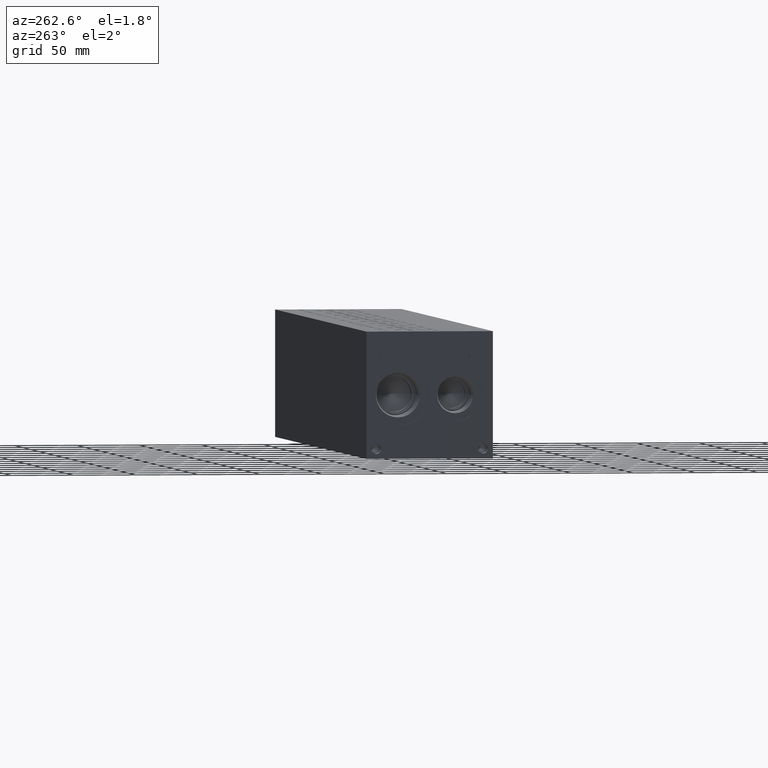
[diagram: clean part render]
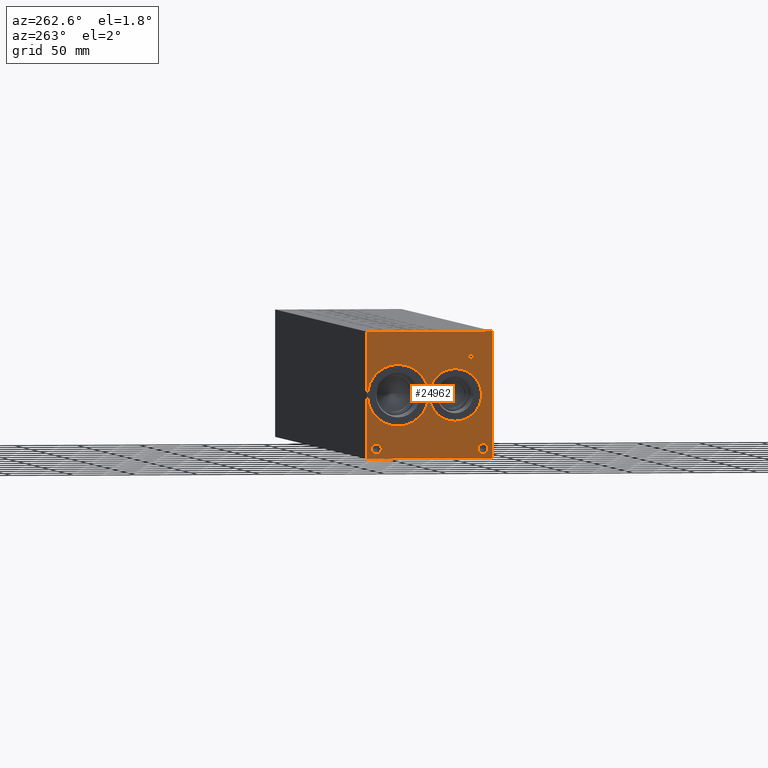
[diagram: same view with one face highlighted and labeled with its STEP entity id]
A machine part, auxiliary view. The second image highlights one B-rep face of the part: STEP entity #24962.
In plain terms, the highlighted planar face has unit normal (-1, 0, 0).
Its self-contained STEP definition (entity closure, byte-faithful):
#502=CIRCLE('',#26354,24.5618);
#503=CIRCLE('',#26355,24.5618);
#504=CIRCLE('',#26356,21.0185);
#505=CIRCLE('',#26357,21.0185);
#506=CIRCLE('',#26358,3.9624);
#507=CIRCLE('',#26359,3.9624);
#508=CIRCLE('',#26360,3.9624);
#509=CIRCLE('',#26361,3.9624);
#1520=FACE_BOUND('',#3888,.T.);
#1521=FACE_BOUND('',#3889,.T.);
#1522=FACE_BOUND('',#3890,.T.);
#1523=FACE_BOUND('',#3891,.T.);
#1524=FACE_BOUND('',#3892,.T.);
#1525=FACE_BOUND('',#3893,.T.);
#1838=PLANE('',#26353);
#2494=FACE_OUTER_BOUND('',#3887,.T.);
#3887=EDGE_LOOP('',(#16776,#16777,#16778,#16779));
#3888=EDGE_LOOP('',(#16780,#16781));
#3889=EDGE_LOOP('',(#16782,#16783));
#3890=EDGE_LOOP('',(#16784,#16785));
#3891=EDGE_LOOP('',(#16786,#16787));
#3892=EDGE_LOOP('',(#16788,#16789,#16790,#16791,#16792,#16793,#16794,#16795));
#3893=EDGE_LOOP('',(#16796,#16797,#16798,#16799,#16800,#16801,#16802,#16803,
#16804));
#5594=LINE('',#35268,#7716);
#5597=LINE('',#35274,#7719);
#5600=LINE('',#35280,#7722);
#5603=LINE('',#35286,#7725);
#5606=LINE('',#35292,#7728);
#5610=LINE('',#35335,#7732);
#5611=LINE('',#35337,#7733);
#5612=LINE('',#35339,#7734);
#5613=LINE('',#35340,#7735);
#5614=LINE('',#35359,#7736);
#5615=LINE('',#35361,#7737);
#5616=LINE('',#35363,#7738);
#5617=LINE('',#35365,#7739);
#5618=LINE('',#35367,#7740);
#5619=LINE('',#35369,#7741);
#5620=LINE('',#35371,#7742);
#5621=LINE('',#35372,#7743);
#7716=VECTOR('',#28595,10.);
#7719=VECTOR('',#28600,10.);
#7722=VECTOR('',#28605,10.);
#7725=VECTOR('',#28610,10.);
#7728=VECTOR('',#28615,10.);
#7732=VECTOR('',#28623,10.);
#7733=VECTOR('',#28624,10.);
#7734=VECTOR('',#28625,10.);
#7735=VECTOR('',#28626,10.);
#7736=VECTOR('',#28643,10.);
#7737=VECTOR('',#28644,10.);
#7738=VECTOR('',#28645,10.);
#7739=VECTOR('',#28646,10.);
#7740=VECTOR('',#28647,10.);
#7741=VECTOR('',#28648,10.);
#7742=VECTOR('',#28649,10.);
#7743=VECTOR('',#28650,10.);
#9786=B_SPLINE_CURVE_WITH_KNOTS('',2,(#35235,#35236,#35237,#35238),
 .UNSPECIFIED.,.F.,.F.,(3,1,3),(0.,1.,2.),.UNSPECIFIED.);
#9788=B_SPLINE_CURVE_WITH_KNOTS('',2,(#35256,#35257,#35258,#35259),
 .UNSPECIFIED.,.F.,.F.,(3,1,3),(0.,1.,2.),.UNSPECIFIED.);
#9790=B_SPLINE_CURVE_WITH_KNOTS('',2,(#35305,#35306,#35307,#35308),
 .UNSPECIFIED.,.F.,.F.,(3,1,3),(0.,1.,2.),.UNSPECIFIED.);
#9792=B_SPLINE_CURVE_WITH_KNOTS('',2,(#35323,#35324,#35325,#35326),
 .UNSPECIFIED.,.F.,.F.,(3,1,3),(0.,1.,2.),.UNSPECIFIED.);
#10366=VERTEX_POINT('',#35233);
#10367=VERTEX_POINT('',#35234);
#10370=VERTEX_POINT('',#35255);
#10372=VERTEX_POINT('',#35267);
#10374=VERTEX_POINT('',#35273);
#10376=VERTEX_POINT('',#35279);
#10378=VERTEX_POINT('',#35285);
#10380=VERTEX_POINT('',#35291);
#10382=VERTEX_POINT('',#35304);
#10384=VERTEX_POINT('',#35333);
#10385=VERTEX_POINT('',#35334);
#10386=VERTEX_POINT('',#35336);
#10387=VERTEX_POINT('',#35338);
#10388=VERTEX_POINT('',#35341);
#10389=VERTEX_POINT('',#35342);
#10390=VERTEX_POINT('',#35345);
#10391=VERTEX_POINT('',#35346);
#10392=VERTEX_POINT('',#35349);
#10393=VERTEX_POINT('',#35350);
#10394=VERTEX_POINT('',#35353);
#10395=VERTEX_POINT('',#35354);
#10396=VERTEX_POINT('',#35357);
#10397=VERTEX_POINT('',#35358);
#10398=VERTEX_POINT('',#35360);
#10399=VERTEX_POINT('',#35362);
#10400=VERTEX_POINT('',#35364);
#10401=VERTEX_POINT('',#35366);
#10402=VERTEX_POINT('',#35368);
#10403=VERTEX_POINT('',#35370);
#12982=EDGE_CURVE('',#10366,#10367,#9786,.T.);
#12986=EDGE_CURVE('',#10370,#10366,#9788,.T.);
#12989=EDGE_CURVE('',#10372,#10370,#5594,.T.);
#12992=EDGE_CURVE('',#10374,#10372,#5597,.T.);
#12995=EDGE_CURVE('',#10376,#10374,#5600,.T.);
#12998=EDGE_CURVE('',#10378,#10376,#5603,.T.);
#13001=EDGE_CURVE('',#10380,#10378,#5606,.T.);
#13004=EDGE_CURVE('',#10382,#10380,#9790,.T.);
#13007=EDGE_CURVE('',#10367,#10382,#9792,.T.);
#13009=EDGE_CURVE('',#10384,#10385,#5610,.T.);
#13010=EDGE_CURVE('',#10385,#10386,#5611,.T.);
#13011=EDGE_CURVE('',#10387,#10386,#5612,.T.);
#13012=EDGE_CURVE('',#10384,#10387,#5613,.T.);
#13013=EDGE_CURVE('',#10388,#10389,#502,.T.);
#13014=EDGE_CURVE('',#10389,#10388,#503,.T.);
#13015=EDGE_CURVE('',#10390,#10391,#504,.T.);
#13016=EDGE_CURVE('',#10391,#10390,#505,.T.);
#13017=EDGE_CURVE('',#10392,#10393,#506,.T.);
#13018=EDGE_CURVE('',#10393,#10392,#507,.T.);
#13019=EDGE_CURVE('',#10394,#10395,#508,.T.);
#13020=EDGE_CURVE('',#10395,#10394,#509,.T.);
#13021=EDGE_CURVE('',#10396,#10397,#5614,.T.);
#13022=EDGE_CURVE('',#10397,#10398,#5615,.T.);
#13023=EDGE_CURVE('',#10398,#10399,#5616,.T.);
#13024=EDGE_CURVE('',#10399,#10400,#5617,.T.);
#13025=EDGE_CURVE('',#10400,#10401,#5618,.T.);
#13026=EDGE_CURVE('',#10401,#10402,#5619,.T.);
#13027=EDGE_CURVE('',#10402,#10403,#5620,.T.);
#13028=EDGE_CURVE('',#10403,#10396,#5621,.T.);
#16776=ORIENTED_EDGE('',*,*,#13009,.T.);
#16777=ORIENTED_EDGE('',*,*,#13010,.T.);
#16778=ORIENTED_EDGE('',*,*,#13011,.F.);
#16779=ORIENTED_EDGE('',*,*,#13012,.F.);
#16780=ORIENTED_EDGE('',*,*,#13013,.T.);
#16781=ORIENTED_EDGE('',*,*,#13014,.T.);
#16782=ORIENTED_EDGE('',*,*,#13015,.T.);
#16783=ORIENTED_EDGE('',*,*,#13016,.T.);
#16784=ORIENTED_EDGE('',*,*,#13017,.T.);
#16785=ORIENTED_EDGE('',*,*,#13018,.T.);
#16786=ORIENTED_EDGE('',*,*,#13019,.T.);
#16787=ORIENTED_EDGE('',*,*,#13020,.T.);
#16788=ORIENTED_EDGE('',*,*,#13021,.T.);
#16789=ORIENTED_EDGE('',*,*,#13022,.T.);
#16790=ORIENTED_EDGE('',*,*,#13023,.T.);
#16791=ORIENTED_EDGE('',*,*,#13024,.T.);
#16792=ORIENTED_EDGE('',*,*,#13025,.T.);
#16793=ORIENTED_EDGE('',*,*,#13026,.T.);
#16794=ORIENTED_EDGE('',*,*,#13027,.T.);
#16795=ORIENTED_EDGE('',*,*,#13028,.T.);
#16796=ORIENTED_EDGE('',*,*,#12982,.T.);
#16797=ORIENTED_EDGE('',*,*,#13007,.T.);
#16798=ORIENTED_EDGE('',*,*,#13004,.T.);
#16799=ORIENTED_EDGE('',*,*,#13001,.T.);
#16800=ORIENTED_EDGE('',*,*,#12998,.T.);
#16801=ORIENTED_EDGE('',*,*,#12995,.T.);
#16802=ORIENTED_EDGE('',*,*,#12992,.T.);
#16803=ORIENTED_EDGE('',*,*,#12989,.T.);
#16804=ORIENTED_EDGE('',*,*,#12986,.T.);
#24962=ADVANCED_FACE('',(#2494,#1520,#1521,#1522,#1523,#1524,#1525),#1838,
 .T.);
#26353=AXIS2_PLACEMENT_3D('',#35332,#28621,#28622);
#26354=AXIS2_PLACEMENT_3D('',#35343,#28627,#28628);
#26355=AXIS2_PLACEMENT_3D('',#35344,#28629,#28630);
#26356=AXIS2_PLACEMENT_3D('',#35347,#28631,#28632);
#26357=AXIS2_PLACEMENT_3D('',#35348,#28633,#28634);
#26358=AXIS2_PLACEMENT_3D('',#35351,#28635,#28636);
#26359=AXIS2_PLACEMENT_3D('',#35352,#28637,#28638);
#26360=AXIS2_PLACEMENT_3D('',#35355,#28639,#28640);
#26361=AXIS2_PLACEMENT_3D('',#35356,#28641,#28642);
#28595=DIRECTION('',(0.,-1.,0.));
#28600=DIRECTION('',(0.,-3.49676548440641E-15,1.));
#28605=DIRECTION('',(0.,1.,0.));
#28610=DIRECTION('',(0.,3.75218139805001E-15,-1.));
#28615=DIRECTION('',(0.,1.,0.));
#28621=DIRECTION('center_axis',(-1.,0.,0.));
#28622=DIRECTION('ref_axis',(0.,-1.,0.));
#28623=DIRECTION('',(0.,-1.,0.));
#28624=DIRECTION('',(0.,0.,1.));
#28625=DIRECTION('',(0.,-1.,0.));
#28626=DIRECTION('',(0.,0.,1.));
#28627=DIRECTION('center_axis',(1.,0.,0.));
#28628=DIRECTION('ref_axis',(0.,0.,1.));
#28629=DIRECTION('center_axis',(1.,0.,0.));
#28630=DIRECTION('ref_axis',(0.,0.,1.));
#28631=DIRECTION('center_axis',(1.,0.,0.));
#28632=DIRECTION('ref_axis',(0.,0.,1.));
#28633=DIRECTION('center_axis',(1.,0.,0.));
#28634=DIRECTION('ref_axis',(0.,0.,1.));
#28635=DIRECTION('center_axis',(1.,0.,0.));
#28636=DIRECTION('ref_axis',(0.,1.,0.));
#28637=DIRECTION('center_axis',(1.,0.,0.));
#28638=DIRECTION('ref_axis',(0.,1.,0.));
#28639=DIRECTION('center_axis',(1.,0.,0.));
#28640=DIRECTION('ref_axis',(0.,1.,0.));
#28641=DIRECTION('center_axis',(1.,0.,0.));
#28642=DIRECTION('ref_axis',(0.,1.,0.));
#28643=DIRECTION('',(0.,1.,1.0524411238433E-14));
#28644=DIRECTION('',(0.,-3.17280044688052E-15,1.));
#28645=DIRECTION('',(0.,1.,0.));
#28646=DIRECTION('',(0.,-2.36438827822327E-14,1.));
#28647=DIRECTION('',(0.,-1.,-3.47984565141734E-15));
#28648=DIRECTION('',(0.,2.36438827822327E-14,-1.));
#28649=DIRECTION('',(0.,1.,8.33818088455555E-15));
#28650=DIRECTION('',(0.,3.17280044688052E-15,-1.));
#35233=CARTESIAN_POINT('',(0.,16.1146327976406,82.9157681439707));
#35234=CARTESIAN_POINT('',(0.,15.358190345468,81.397737372604));
#35235=CARTESIAN_POINT('Ctrl Pts',(0.,16.1146327976406,82.9157681439707));
#35236=CARTESIAN_POINT('Ctrl Pts',(0.,15.7595679731514,82.6739123939564));
#35237=CARTESIAN_POINT('Ctrl Pts',(0.,15.358190345468,81.9277616758269));
#35238=CARTESIAN_POINT('Ctrl Pts',(0.,15.358190345468,81.397737372604));
#35255=CARTESIAN_POINT('',(0.,17.7767478456117,83.3119999046326));
#35256=CARTESIAN_POINT('Ctrl Pts',(0.,17.7767478456117,83.3119999046326));
#35257=CARTESIAN_POINT('Ctrl Pts',(0.,17.2107024732376,83.3119999046326));
#35258=CARTESIAN_POINT('Ctrl Pts',(0.,16.418238951914,83.1267486918556));
#35259=CARTESIAN_POINT('Ctrl Pts',(0.,16.1146327976406,82.9157681439707));
#35267=CARTESIAN_POINT('',(0.,19.3719666223022,83.3119999046326));
#35268=CARTESIAN_POINT('',(0.,60.4859833111511,83.3119999046326));
#35273=CARTESIAN_POINT('',(0.,19.3719666223022,76.962));
#35274=CARTESIAN_POINT('',(0.,19.3719666223023,38.4809999999999));
#35279=CARTESIAN_POINT('',(0.,18.5280444307627,76.962));
#35280=CARTESIAN_POINT('',(0.,60.0640222153814,76.962));
#35285=CARTESIAN_POINT('',(0.,18.5280444307627,79.3290988299279));
#35286=CARTESIAN_POINT('',(0.,18.5280444307628,39.6645494149638));
#35291=CARTESIAN_POINT('',(0.,17.8127689147628,79.3290988299279));
#35292=CARTESIAN_POINT('',(0.,59.7063844573814,79.3290988299279));
#35304=CARTESIAN_POINT('',(0.,15.9139439837989,79.9877698086904));
#35305=CARTESIAN_POINT('Ctrl Pts',(0.,15.9139439837989,79.9877698086904));
#35306=CARTESIAN_POINT('Ctrl Pts',(0.,16.2432794731802,79.6635801863307));
#35307=CARTESIAN_POINT('Ctrl Pts',(0.,17.1335144679139,79.3290988299279));
#35308=CARTESIAN_POINT('Ctrl Pts',(0.,17.8127689147628,79.3290988299279));
#35323=CARTESIAN_POINT('Ctrl Pts',(0.,15.358190345468,81.397737372604));
#35324=CARTESIAN_POINT('Ctrl Pts',(0.,15.358190345468,80.9860680108774));
#35325=CARTESIAN_POINT('Ctrl Pts',(0.,15.6515047656982,80.2450631597695));
#35326=CARTESIAN_POINT('Ctrl Pts',(0.,15.9139439837989,79.9877698086904));
#35332=CARTESIAN_POINT('Origin',(0.,101.6,0.));
#35333=CARTESIAN_POINT('',(0.,101.6,0.));
#35334=CARTESIAN_POINT('',(0.,0.,0.));
#35335=CARTESIAN_POINT('',(0.,101.6,0.));
#35336=CARTESIAN_POINT('',(0.,0.,101.6));
#35337=CARTESIAN_POINT('',(0.,0.,0.));
#35338=CARTESIAN_POINT('',(0.,101.6,101.6));
#35339=CARTESIAN_POINT('',(0.,101.6,101.6));
#35340=CARTESIAN_POINT('',(0.,101.6,0.));
#35341=CARTESIAN_POINT('',(0.,76.2,75.3618));
#35342=CARTESIAN_POINT('',(6.93889390390723E-17,76.2,26.2382));
#35343=CARTESIAN_POINT('Origin',(0.,76.2,50.8));
#35344=CARTESIAN_POINT('Origin',(0.,76.2,50.8));
#35345=CARTESIAN_POINT('',(0.,30.1752,71.8185));
#35346=CARTESIAN_POINT('',(0.,30.1752,29.7815));
#35347=CARTESIAN_POINT('Origin',(0.,30.1752,50.8));
#35348=CARTESIAN_POINT('Origin',(0.,30.1752,50.8));
#35349=CARTESIAN_POINT('',(0.,97.6376,7.92480000000001));
#35350=CARTESIAN_POINT('',(0.,89.7128,7.92480000000001));
#35351=CARTESIAN_POINT('Origin',(0.,93.6752,7.92480000000001));
#35352=CARTESIAN_POINT('Origin',(0.,93.6752,7.92480000000001));
#35353=CARTESIAN_POINT('',(0.,11.8872,7.92480000000001));
#35354=CARTESIAN_POINT('',(0.,3.9624,7.92480000000001));
#35355=CARTESIAN_POINT('Origin',(0.,7.9248,7.92480000000001));
#35356=CARTESIAN_POINT('Origin',(0.,7.9248,7.92480000000001));
#35357=CARTESIAN_POINT('',(0.,91.487084728547,76.99375));
#35358=CARTESIAN_POINT('',(0.,92.3310069200865,76.99375));
#35359=CARTESIAN_POINT('',(0.,96.5435423642731,76.9937500000001));
#35360=CARTESIAN_POINT('',(0.,92.3310069200865,82.5924533194816));
#35361=CARTESIAN_POINT('',(0.,92.3310069200866,38.496875));
#35362=CARTESIAN_POINT('',(0.,94.4613958670216,82.5924533194816));
#35363=CARTESIAN_POINT('',(0.,96.9655034600432,82.5924533194816));
#35364=CARTESIAN_POINT('',(0.,94.4613958670215,83.3437499046326));
#35365=CARTESIAN_POINT('',(0.,94.4613958670225,41.2962266597407));
#35366=CARTESIAN_POINT('',(0.,89.3566957816119,83.3437499046326));
#35367=CARTESIAN_POINT('',(0.,98.0306979335106,83.3437499046326));
#35368=CARTESIAN_POINT('',(0.,89.3566957816119,82.5924533194815));
#35369=CARTESIAN_POINT('',(0.,89.3566957816129,41.6718749523161));
#35370=CARTESIAN_POINT('',(0.,91.487084728547,82.5924533194816));
#35371=CARTESIAN_POINT('',(0.,95.4783478908056,82.5924533194816));
#35372=CARTESIAN_POINT('',(0.,91.4870847285471,41.2962266597408));